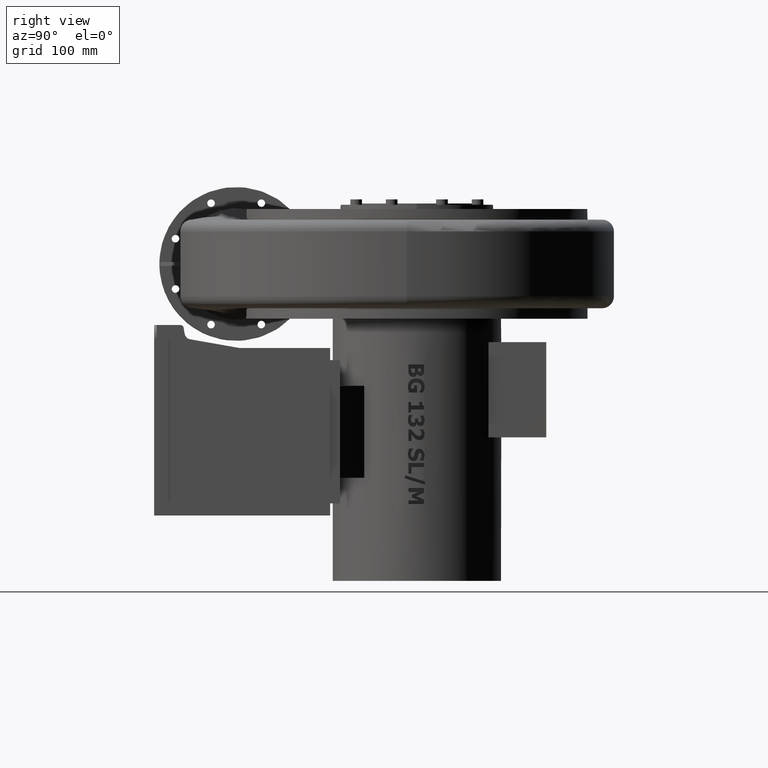
[diagram: clean part render]
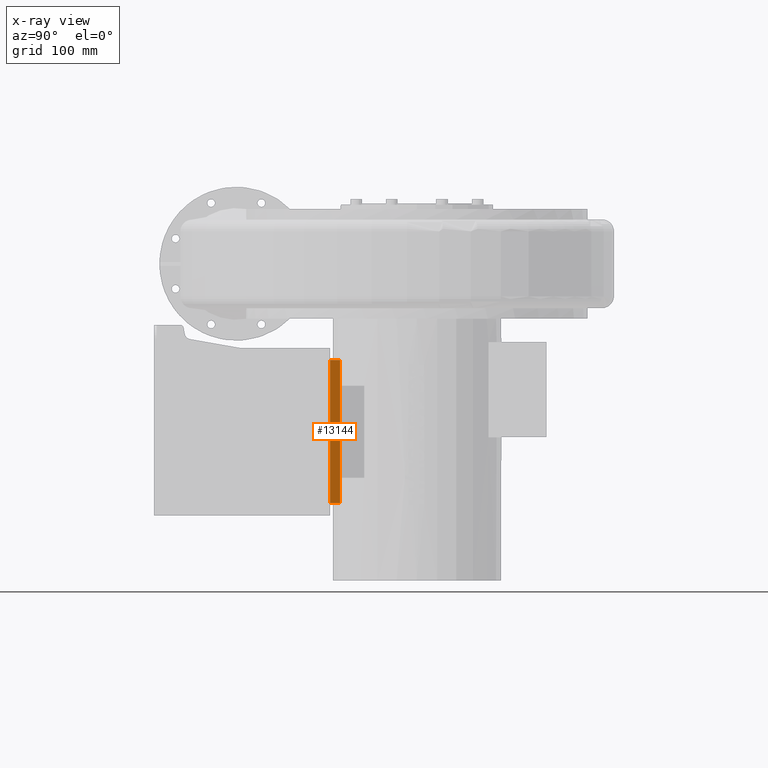
[diagram: x-ray — body ghosted, one internal face saturated and labeled with its STEP entity id]
A machine part, right view, then the same camera in x-ray: the body is ghosted and one INTERNAL B-rep face — a face not visible from any outside direction — is saturated and labeled: STEP entity #13144.
In plain terms, the highlighted planar face has unit normal (1, 0, -0).
Its self-contained STEP definition (entity closure, byte-faithful):
#329=LINE('',#18501,#1501);
#888=LINE('',#22138,#2060);
#890=LINE('',#22144,#2062);
#895=LINE('',#22153,#2067);
#898=LINE('',#22158,#2070);
#899=LINE('',#22159,#2071);
#1501=VECTOR('',#14621,218.);
#2060=VECTOR('',#15896,140.);
#2062=VECTOR('',#15904,39.);
#2067=VECTOR('',#15911,39.);
#2070=VECTOR('',#15918,15.);
#2071=VECTOR('',#15919,15.);
#3686=FACE_OUTER_BOUND('',#4448,.T.);
#4448=EDGE_LOOP('',(#10611,#10612,#10613,#10614,#10615,#10616));
#5276=VERTEX_POINT('',#18499);
#5277=VERTEX_POINT('',#18500);
#5870=VERTEX_POINT('',#22132);
#5871=VERTEX_POINT('',#22136);
#5872=VERTEX_POINT('',#22143);
#5875=VERTEX_POINT('',#22151);
#6620=EDGE_CURVE('',#5276,#5277,#329,.T.);
#7511=EDGE_CURVE('',#5871,#5870,#888,.T.);
#7513=EDGE_CURVE('',#5870,#5872,#890,.T.);
#7518=EDGE_CURVE('',#5875,#5871,#895,.T.);
#7521=EDGE_CURVE('',#5277,#5872,#898,.T.);
#7522=EDGE_CURVE('',#5875,#5276,#899,.T.);
#10611=ORIENTED_EDGE('',*,*,#7521,.T.);
#10612=ORIENTED_EDGE('',*,*,#7513,.F.);
#10613=ORIENTED_EDGE('',*,*,#7511,.F.);
#10614=ORIENTED_EDGE('',*,*,#7518,.F.);
#10615=ORIENTED_EDGE('',*,*,#7522,.T.);
#10616=ORIENTED_EDGE('',*,*,#6620,.T.);
#11811=PLANE('',#13826);
#13144=ADVANCED_FACE('',(#3686),#11811,.T.);
#13826=AXIS2_PLACEMENT_3D('',#22157,#15916,#15917);
#14621=DIRECTION('',(-2.557266721116E-15,-4.67343487721602E-16,-1.));
#15896=DIRECTION('',(-2.557266721116E-15,-4.67343487721602E-16,-1.));
#15904=DIRECTION('',(-2.557266721116E-15,-4.67343487721602E-16,-1.));
#15911=DIRECTION('',(-2.557266721116E-15,-4.67343487721602E-16,-1.));
#15916=DIRECTION('center_axis',(1.,6.65309556112426E-15,-2.557266721116E-15));
#15917=DIRECTION('ref_axis',(-2.8421709430404E-15,0.,-1.));
#15918=DIRECTION('',(-6.65309556112426E-15,1.,-4.67343487721585E-16));
#15919=DIRECTION('',(6.65309556112426E-15,-1.,4.67343487721585E-16));
#18499=CARTESIAN_POINT('',(-68.7499999999988,267.999999999999,236.499999999999));
#18500=CARTESIAN_POINT('',(-68.7499999999994,267.999999999999,18.4999999999992));
#18501=CARTESIAN_POINT('',(-68.7499999999988,267.999999999999,236.499999999999));
#22132=CARTESIAN_POINT('',(-68.7499999999994,282.999999999999,57.4999999999992));
#22136=CARTESIAN_POINT('',(-68.749999999999,282.999999999999,197.499999999999));
#22138=CARTESIAN_POINT('',(-68.7499999999989,282.999999999999,236.499999999999));
#22143=CARTESIAN_POINT('',(-68.7499999999995,282.999999999999,18.4999999999992));
#22144=CARTESIAN_POINT('',(-68.7499999999989,282.999999999999,236.499999999999));
#22151=CARTESIAN_POINT('',(-68.7499999999989,282.999999999999,236.499999999999));
#22153=CARTESIAN_POINT('',(-68.7499999999989,282.999999999999,236.499999999999));
#22157=CARTESIAN_POINT('Origin',(-68.7499999999988,267.999999999999,236.499999999999));
#22158=CARTESIAN_POINT('',(-68.7499999999995,282.999999999999,18.4999999999992));
#22159=CARTESIAN_POINT('',(-68.7499999999989,282.999999999999,236.499999999999));